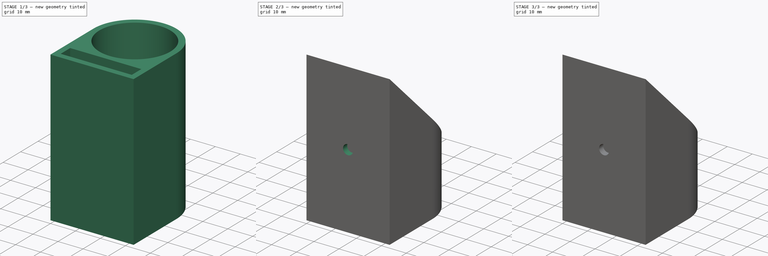
[diagram: build sequence overview — one tinted view per stage of 3, left to right]
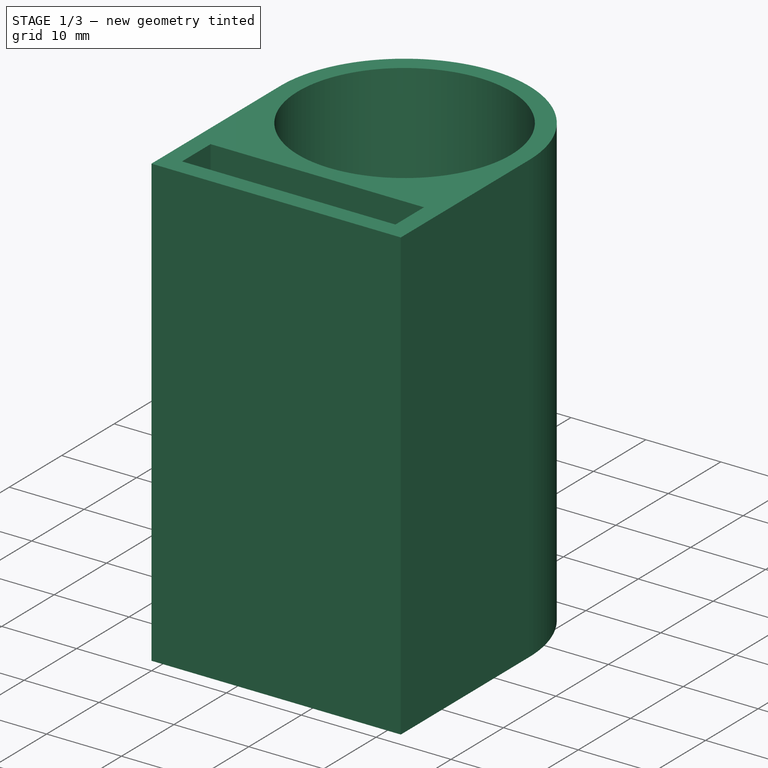
[diagram: stage 1 of 3 — iso view after this stage's code; geometry added in this stage tinted green]
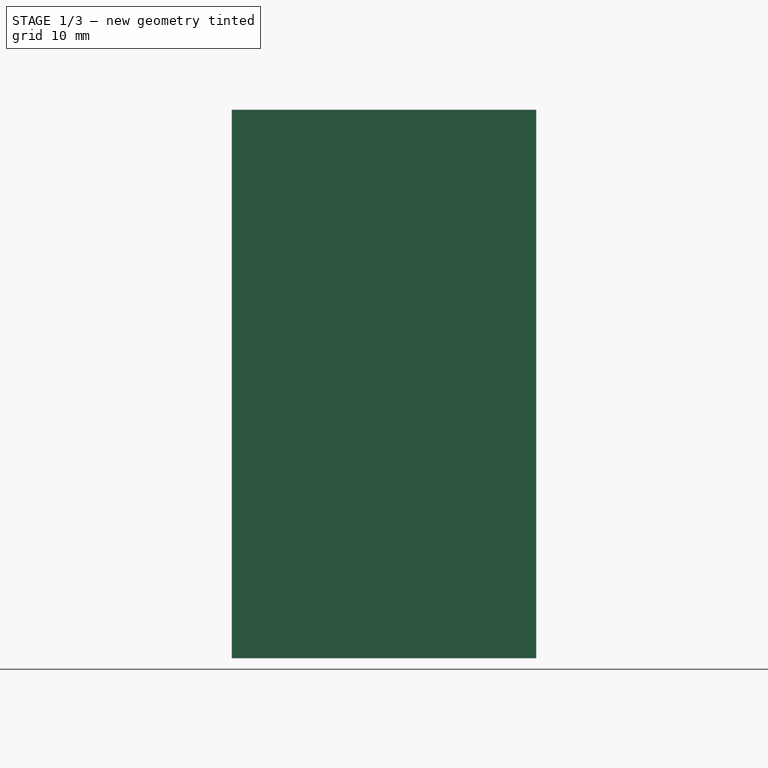
[diagram: stage 1 of 3 — front view after this stage's code; geometry added in this stage tinted green]
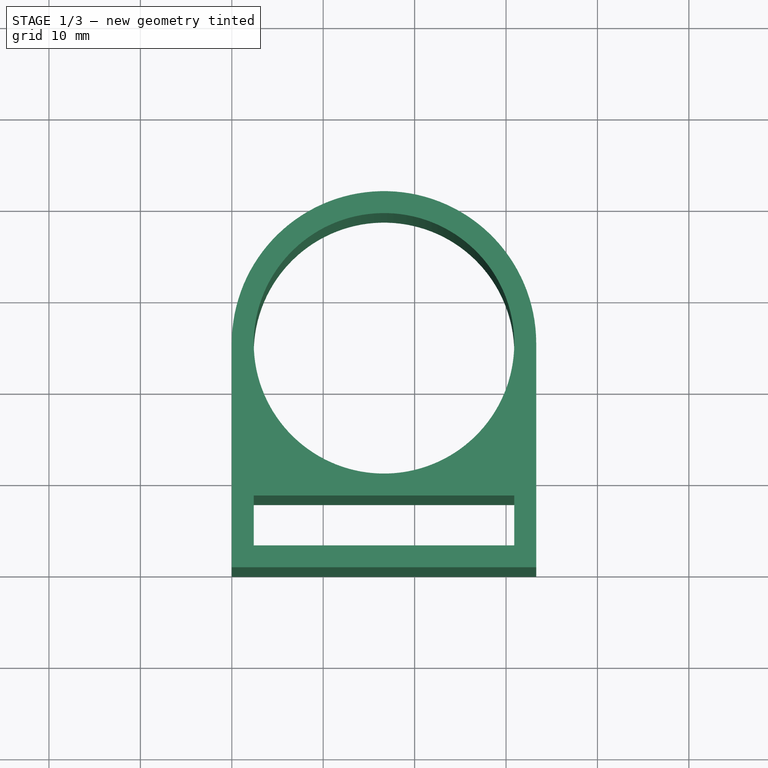
[diagram: stage 1 of 3 — top view after this stage's code; geometry added in this stage tinted green]
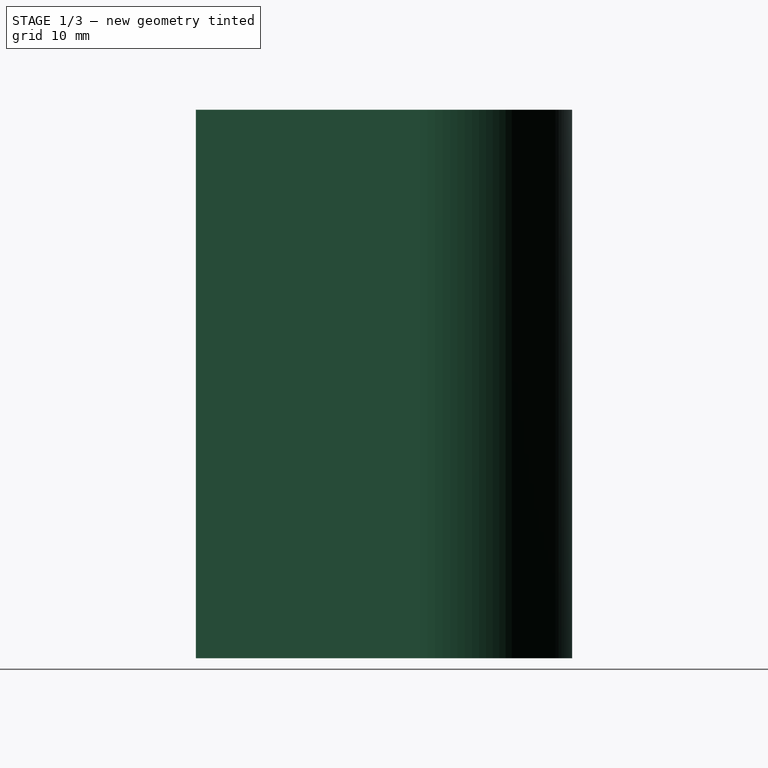
[diagram: stage 1 of 3 — right view after this stage's code; geometry added in this stage tinted green]
FCSTD DOCUMENT  (FreeCAD 1.0R39109 (Git))
Label: Sticky Mount
License: All rights reserved
LicenseURL: http://en.wikipedia.org/wiki/All_rights_reserved
objects: Sketcher::SketchObject×5, PartDesign::Pocket×4, Spreadsheet::Sheet×1, PartDesign::Pad×1, PartDesign::Plane×1, PartDesign::Chamfer×1, PartDesign::Body×1
note: 30 computed .brp shape members not serialized (recipe doc carries the construction recipe); baked Part::Feature solids carry a one-line shape summary decoded from their .brp

FEATURE [Spreadsheet::Sheet] Spreadsheet
  cells = A1='bar_diameter; B1(bar_diameter)=28.5; A2='bar_center_height; B2(bar_center_height)=24.5; A3='base_depth; B3(base_depth)=60; A4='thickness; B4(thickness)=2.4; A6='cutout_fillet_radius; B6(cutout_fillet_radius)=2.4; A7='edge_fillet_radius; B7(edge_fillet_radius)=1; A8='bottom_screw_hole_diameter; B8(bottom_screw_hole_diameter)=4; A9='top_depth; B9(top_depth)=20; A10='bar_screw_hole_diameter; B10(bar_screw_hole_diameter)=4; A11='bar_screw_hole_offset; B11(bar_screw_hole_offset)=10; A12='bar_screw_hole_chamfer_depth; B12(bar_screw_hole_chamfer_depth)=2; A13='bar_screw_hole_chamfer_width; B13(bar_screw_hole_chamfer_width)=2
FEATURE [Sketcher::SketchObject] Sketch
  ArcFitTolerance = 1e-06
  AttachmentSupport = -> [XY_Plane]
  FullyConstrained = true
  MakeInternals = false
  MapMode = 5
  expr: Constraints[13] = Spreadsheet.bar_diameter
  expr: Constraints[8] = Spreadsheet.bar_center_height
  expr: Constraints[9] = Spreadsheet.bar_diameter + Spreadsheet.thickness * 2
  sketch-geometry (5):
    g0: LineSegment StartX=0 StartY=0 StartZ=0 EndX=0 EndY=24.5 EndZ=0
    g1: ArcOfCircle CenterX=16.65 CenterY=24.5 CenterZ=0 NormalX=0 NormalY=0 NormalZ=1 AngleXU=0 Radius=16.65 StartAngle=0 EndAngle=3.14159
    g2: LineSegment StartX=33.3 StartY=24.5 StartZ=0 EndX=33.3 EndY=0 EndZ=0
    g3: LineSegment StartX=33.3 StartY=0 StartZ=0 EndX=0 EndY=0 EndZ=0
    g4: Circle CenterX=16.65 CenterY=24.5 CenterZ=0 NormalX=0 NormalY=0 NormalZ=1 AngleXU=0 Radius=14.25
  constraints (14):
    c: Coincident(g0,g-1)
    c: Vertical(g0)
    c: Coincident(g1,g0)
    c: Coincident(g2,g1)
    c: Coincident(g3,g2)
    c: Coincident(g3,g0)
    c: Horizontal(g3)
    c: Vertical(g2)
    c: DistanceY(g0,g1) = 24.5
    c: Diameter(g1) = 33.3
    c: Horizontal(g1,g1)
    c: Horizontal(g0,g1)
    c: Coincident(g4,g1)
    c: Diameter(g4) = 28.5
FEATURE [PartDesign::Pad] Pad
  Direction = (0,0,1)
  Length = 60
  Length2 = 10
  Profile = -> Sketch
  ReferenceAxis = -> Sketch [N_Axis]
  Suppressed = false
  Type = 0
  expr: Length = Spreadsheet.base_depth
FEATURE [Sketcher::SketchObject] Sketch001
  ArcFitTolerance = 1e-06
  AttachmentSupport = -> [Pad]
  FullyConstrained = true
  MakeInternals = false
  MapMode = 5
  Placement = pos=(0,0,60) rot=(0,0,1;0rad)
  expr: Constraints[10] = Spreadsheet.thickness
  expr: Constraints[11] = Spreadsheet.bar_center_height - Spreadsheet.bar_diameter / 2 - Spreadsheet.thickness
  expr: Constraints[8] = Spreadsheet.thickness
  expr: Constraints[9] = Spreadsheet.bar_diameter + Spreadsheet.thickness
  sketch-geometry (4):
    g0: LineSegment StartX=2.4 StartY=2.4 StartZ=0 EndX=30.9 EndY=2.4 EndZ=0
    g1: LineSegment StartX=30.9 StartY=2.4 StartZ=0 EndX=30.9 EndY=7.85 EndZ=0
    g2: LineSegment StartX=30.9 StartY=7.85 StartZ=0 EndX=2.4 EndY=7.85 EndZ=0
    g3: LineSegment StartX=2.4 StartY=7.85 StartZ=0 EndX=2.4 EndY=2.4 EndZ=0
  constraints (12):
    c: Coincident(g0,g1)
    c: Coincident(g1,g2)
    c: Coincident(g2,g3)
    c: Coincident(g3,g0)
    c: Horizontal(g0)
    c: Horizontal(g2)
    c: Vertical(g1)
    c: Vertical(g3)
    c: DistanceX(g-1,g0) = 2.4
    c: DistanceX(g-1,g0) = 30.9
    c: DistanceY(g-1,g0) = 2.4
    c: DistanceY(g-1,g2) = 7.85
FEATURE [PartDesign::Pocket] Pocket
  BaseFeature = -> Pad
  Direction = (0,0,-1)
  Length = 5
  Length2 = 5
  Profile = -> Sketch001
  ReferenceAxis = -> Sketch001 [N_Axis]
  Suppressed = false
  Type = 1
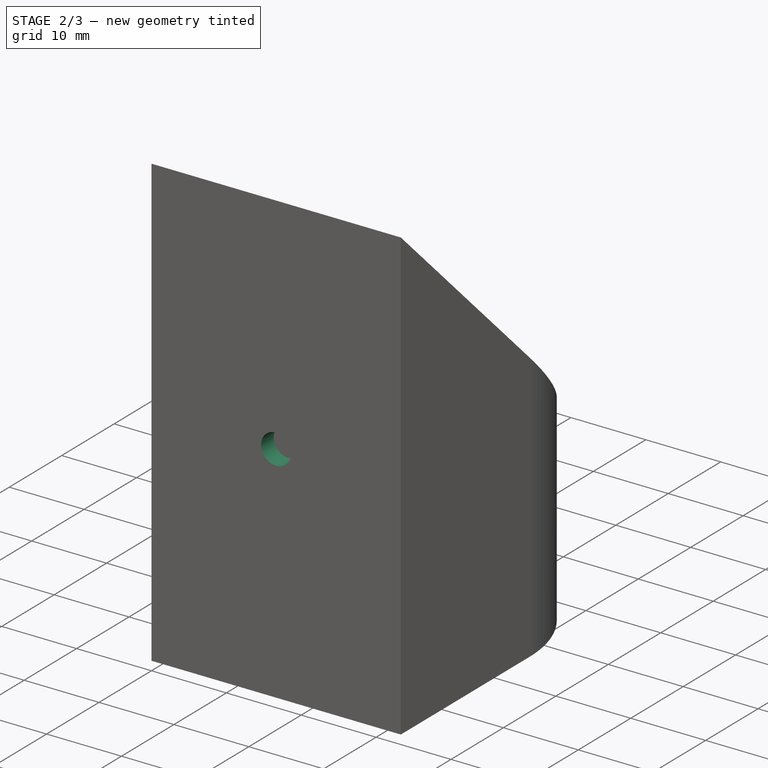
[diagram: stage 2 of 3 — iso view after this stage's code; geometry added in this stage tinted green]
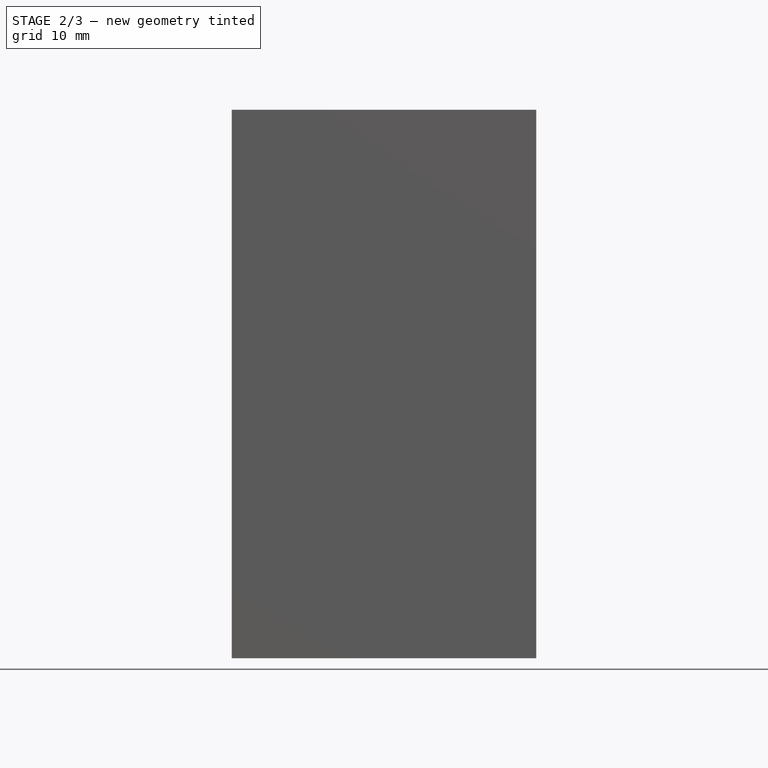
[diagram: stage 2 of 3 — front view after this stage's code; geometry added in this stage tinted green]
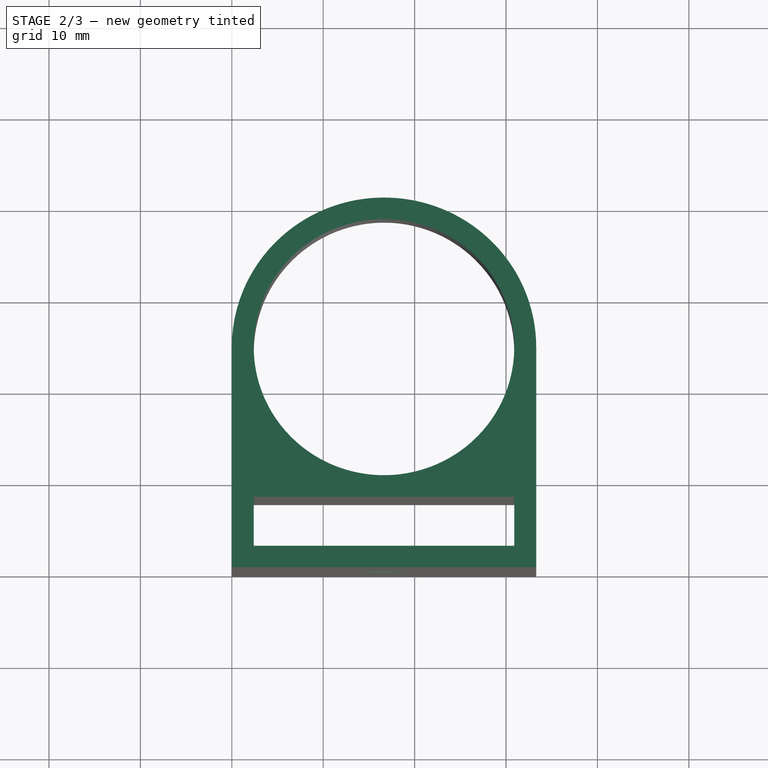
[diagram: stage 2 of 3 — top view after this stage's code; geometry added in this stage tinted green]
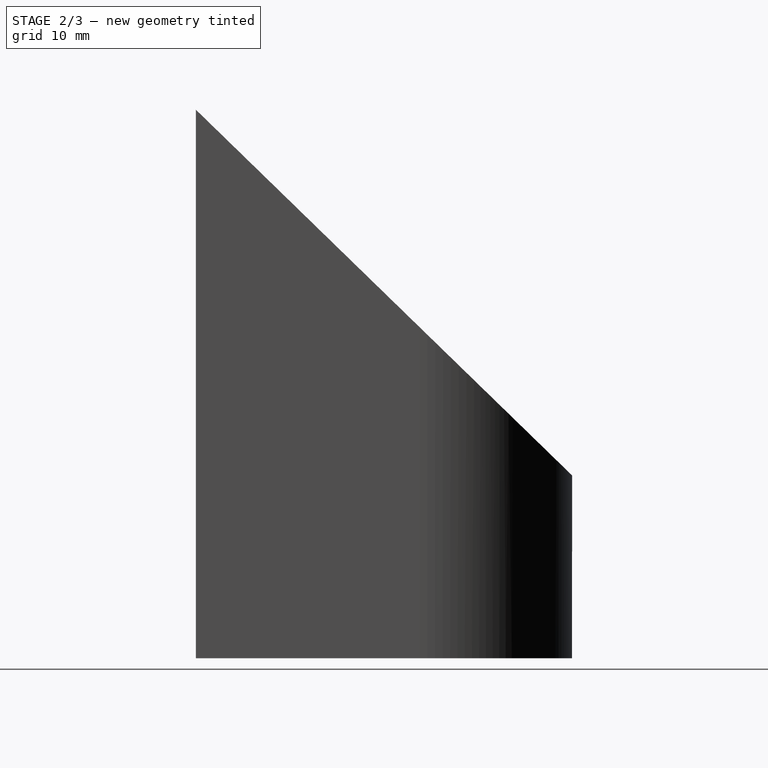
[diagram: stage 2 of 3 — right view after this stage's code; geometry added in this stage tinted green]
FEATURE [Sketcher::SketchObject] Sketch002
  ArcFitTolerance = 1e-06
  AttachmentSupport = -> [Pocket]
  FullyConstrained = true
  MakeInternals = false
  MapMode = 5
  Placement = pos=(0,0,0) rot=(1,0,0;1.5708rad)
  expr: Constraints[0] = Spreadsheet.bottom_screw_hole_diameter
  expr: Constraints[1] = Spreadsheet.base_depth / 2
  expr: Constraints[2] = (Spreadsheet.thickness * 2 + Spreadsheet.bar_diameter) / 2
  sketch-geometry (1):
    g0: Circle CenterX=16.65 CenterY=30 CenterZ=0 NormalX=0 NormalY=0 NormalZ=1 AngleXU=0 Radius=2
  constraints (3):
    c: Diameter(g0) = 4
    c: DistanceY(g-1,g0) = 30
    c: DistanceX(g-1,g0) = 16.65
FEATURE [PartDesign::Pocket] Pocket001
  BaseFeature = -> Pocket
  Direction = (0,1,-2e-16)
  Length = 5
  Length2 = 5
  Profile = -> Sketch002
  ReferenceAxis = -> Sketch002 [N_Axis]
  Suppressed = false
  Type = 2
FEATURE [PartDesign::Plane] DatumPlane
  AttachmentSupport = -> [Pocket001]
  Length = 81.147
  MapMode = 5
  Placement = pos=(33.3,0,0) rot=(0.57735,0.57735,0.57735;2.0944rad)
  ResizeMode = 0
  Width = 99.997
FEATURE [Sketcher::SketchObject] Sketch003
  ArcFitTolerance = 1e-06
  AttachmentSupport = -> [DatumPlane]
  FullyConstrained = true
  MakeInternals = false
  MapMode = 5
  Placement = pos=(33.3,0,0) rot=(0.57735,0.57735,0.57735;2.0944rad)
  expr: Constraints[5] = Spreadsheet.base_depth
  expr: Constraints[6] = Spreadsheet.bar_center_height + Spreadsheet.bar_diameter / 2 + Spreadsheet.thickness
  expr: Constraints[7] = Spreadsheet.top_depth
  sketch-geometry (3):
    g0: LineSegment StartX=0 StartY=60 StartZ=0 EndX=41.15 EndY=20 EndZ=0
    g1: LineSegment StartX=41.15 StartY=20 StartZ=0 EndX=41.15 EndY=60 EndZ=0
    g2: LineSegment StartX=41.15 StartY=60 StartZ=0 EndX=0 EndY=60 EndZ=0
  constraints (9):
    c: Coincident(g1,g0)
    c: Vertical(g1)
    c: Coincident(g2,g1)
    c: Coincident(g2,g0)
    c: Horizontal(g2)
    c: DistanceY(g-1,g0) = 60
    c: DistanceX(g-1,g1) = 41.15
    c: DistanceY(g-1,g0) = 20
    c: Vertical(g-1,g0)
FEATURE [PartDesign::Pocket] Pocket002
  BaseFeature = -> Pocket001
  Direction = (-1,0,0)
  Length = 5
  Length2 = 5
  Profile = -> Sketch003
  ReferenceAxis = -> Sketch003 [N_Axis]
  Suppressed = false
  Type = 1
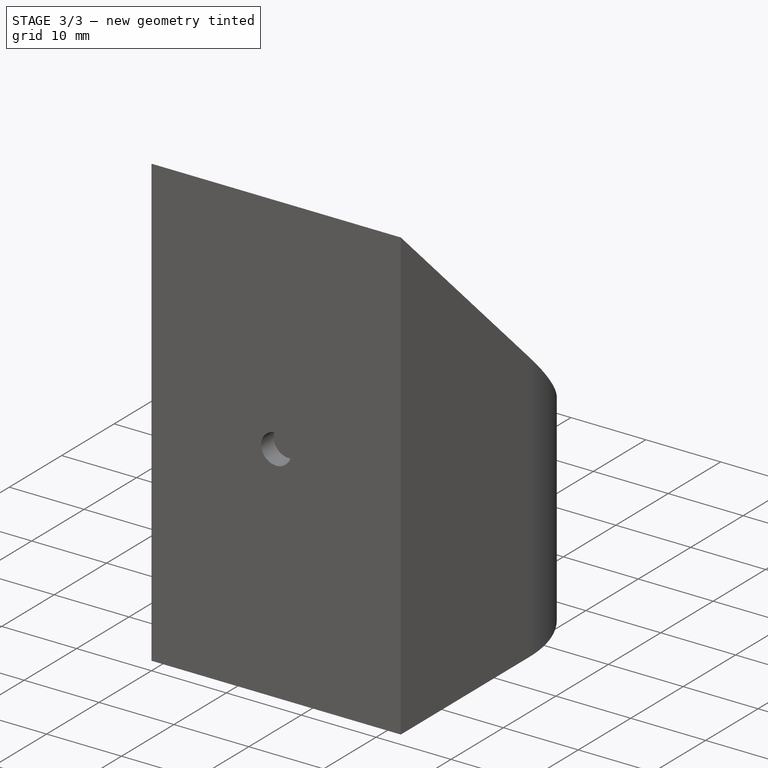
[diagram: stage 3 of 3 — iso view after this stage's code; geometry added in this stage tinted green]
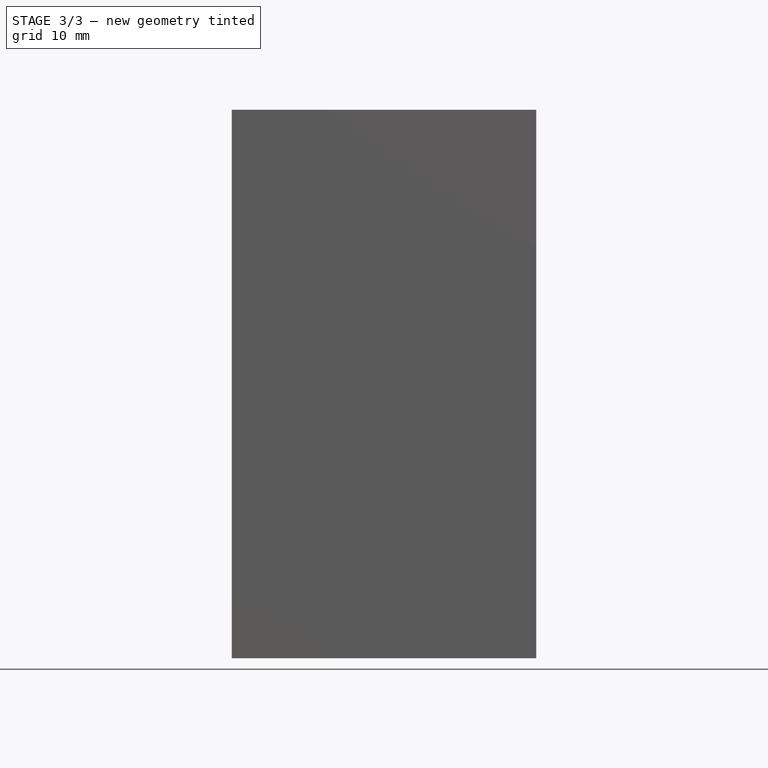
[diagram: stage 3 of 3 — front view after this stage's code; geometry added in this stage tinted green]
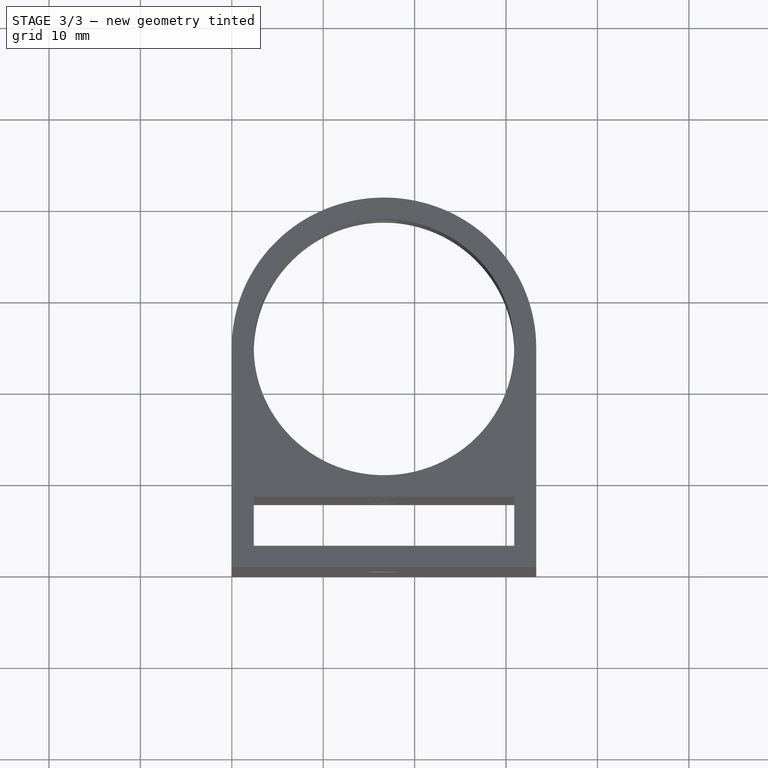
[diagram: stage 3 of 3 — top view after this stage's code; geometry added in this stage tinted green]
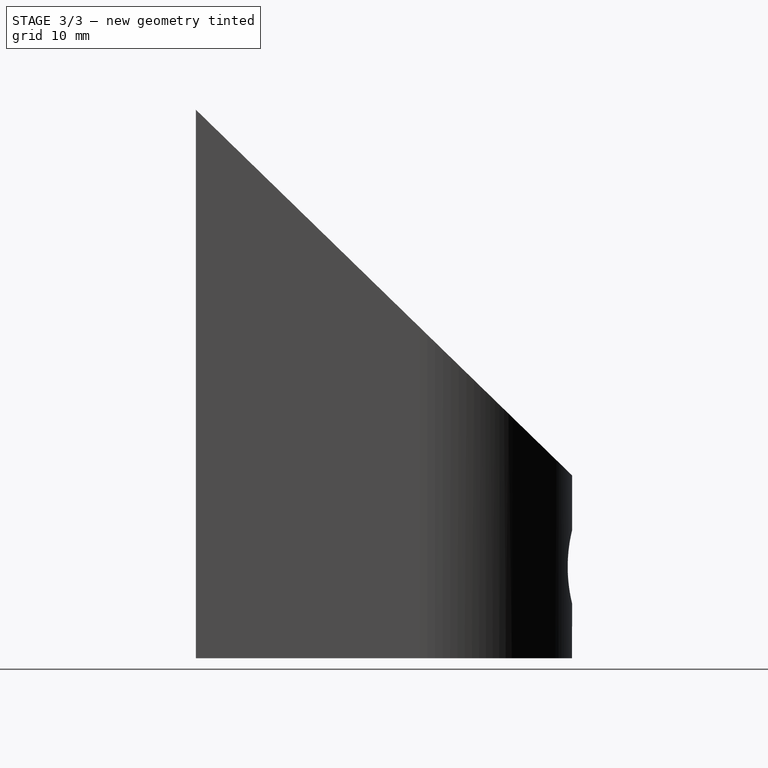
[diagram: stage 3 of 3 — right view after this stage's code; geometry added in this stage tinted green]
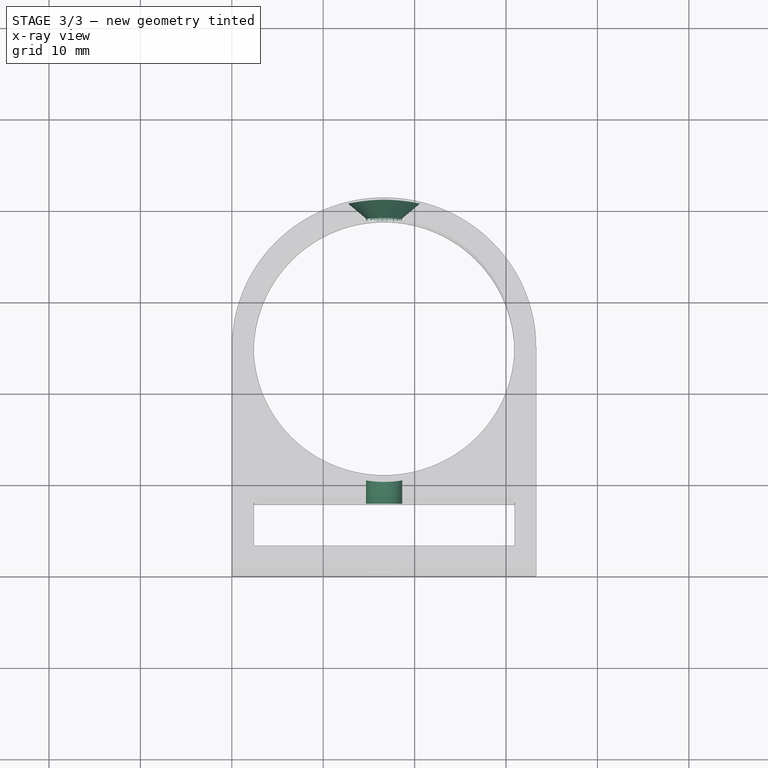
[diagram: stage 3 of 3 — x-ray composite at the top view; earlier geometry ghosted, this stage's added geometry solid]
FEATURE [Sketcher::SketchObject] Sketch004
  ArcFitTolerance = 1e-06
  AttachmentSupport = -> [Pocket002]
  FullyConstrained = true
  MakeInternals = false
  MapMode = 5
  Placement = pos=(0,7.85,0) rot=(1,0,0;1.5708rad)
  expr: Constraints[0] = Spreadsheet.bar_screw_hole_diameter
  expr: Constraints[1] = (Spreadsheet.thickness * 2 + Spreadsheet.bar_diameter) / 2
  expr: Constraints[2] = Spreadsheet.bar_screw_hole_offset
  sketch-geometry (1):
    g0: Circle CenterX=16.65 CenterY=10 CenterZ=0 NormalX=0 NormalY=0 NormalZ=1 AngleXU=0 Radius=2
  constraints (3):
    c: Diameter(g0) = 4
    c: DistanceX(g-1,g0) = 16.65
    c: DistanceY(g-1,g0) = 10
FEATURE [PartDesign::Pocket] Pocket003
  BaseFeature = -> Pocket002
  Direction = (0,1,-2e-16)
  Length = 5
  Length2 = 5
  Profile = -> Sketch004
  ReferenceAxis = -> Sketch004 [N_Axis]
  Suppressed = false
  Type = 1
FEATURE [PartDesign::Chamfer] Chamfer
  Angle = 45
  Base = -> Pocket003 [Edge16]
  BaseFeature = -> Pocket003
  ChamferType = 1
  FlipDirection = false
  Size = 2
  Size2 = 2
  SupportTransform = false
  Suppressed = false
  UseAllEdges = false
  expr: Size = Spreadsheet.bar_screw_hole_chamfer_width
  expr: Size2 = Spreadsheet.bar_screw_hole_chamfer_depth
FEATURE [PartDesign::Body] Body
  AllowCompound = false
  Group = -> [Sketch,Pad,Sketch001,Pocket,Sketch002,Pocket001,DatumPlane,Sketch003,Pocket002,Sketch004,Pocket003,Chamfer]
  Origin = -> Origin
  Tip = -> Chamfer
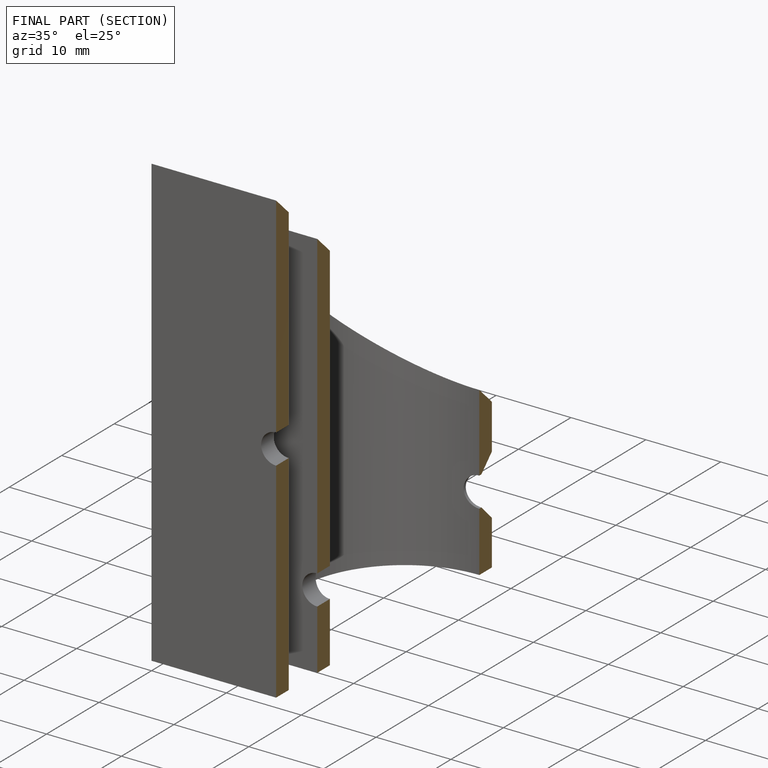
[diagram: finished part — half-section view (interior)]
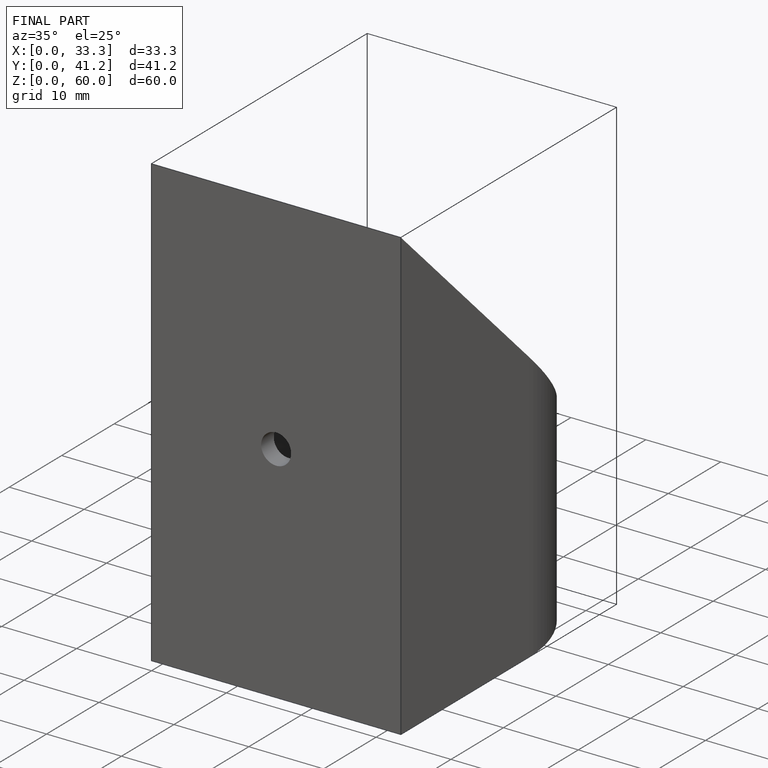
[diagram: finished part — iso view with bounding-box wireframe]
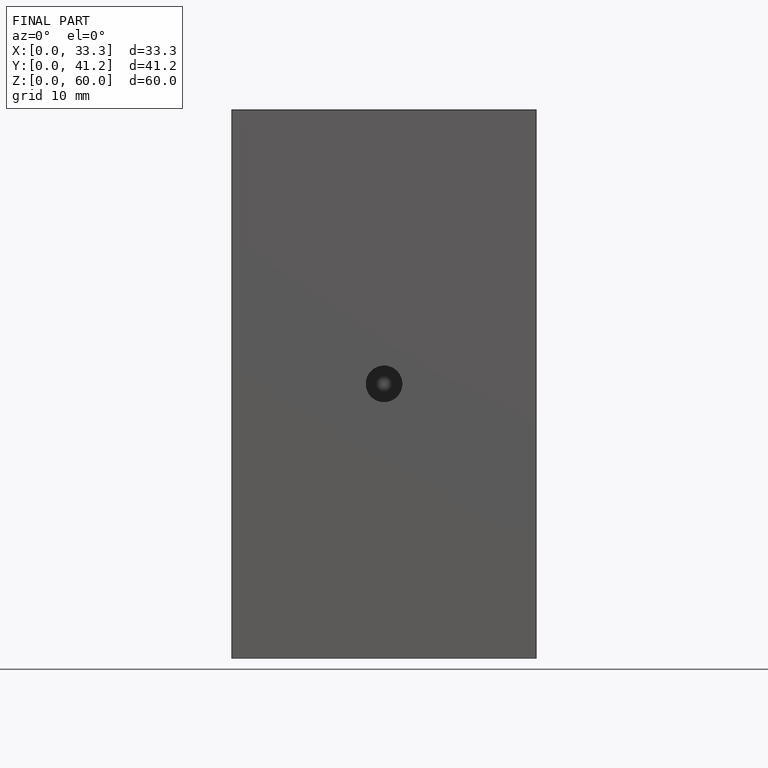
[diagram: finished part — front view with bounding-box wireframe]
